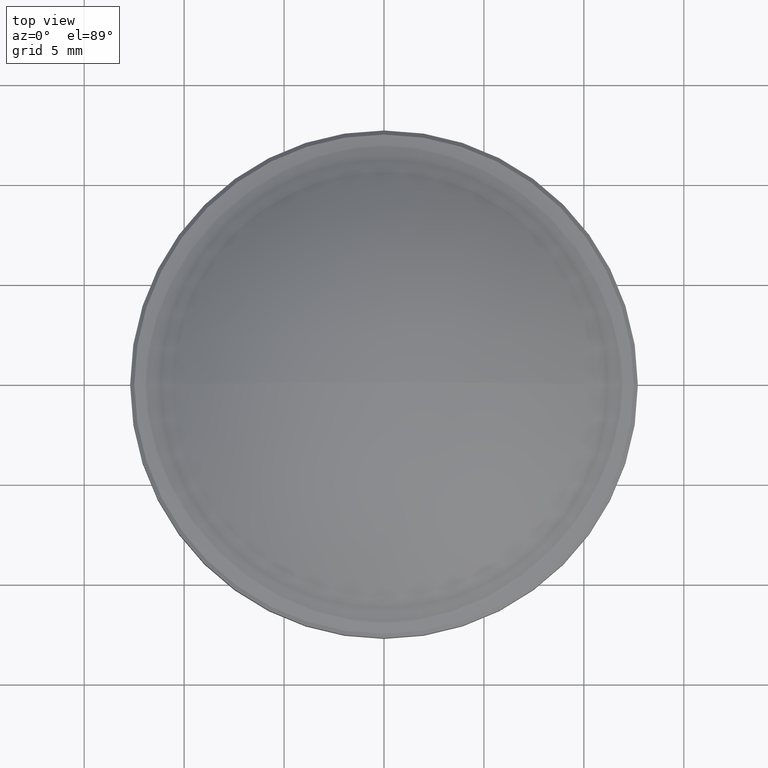
[diagram: clean part render]
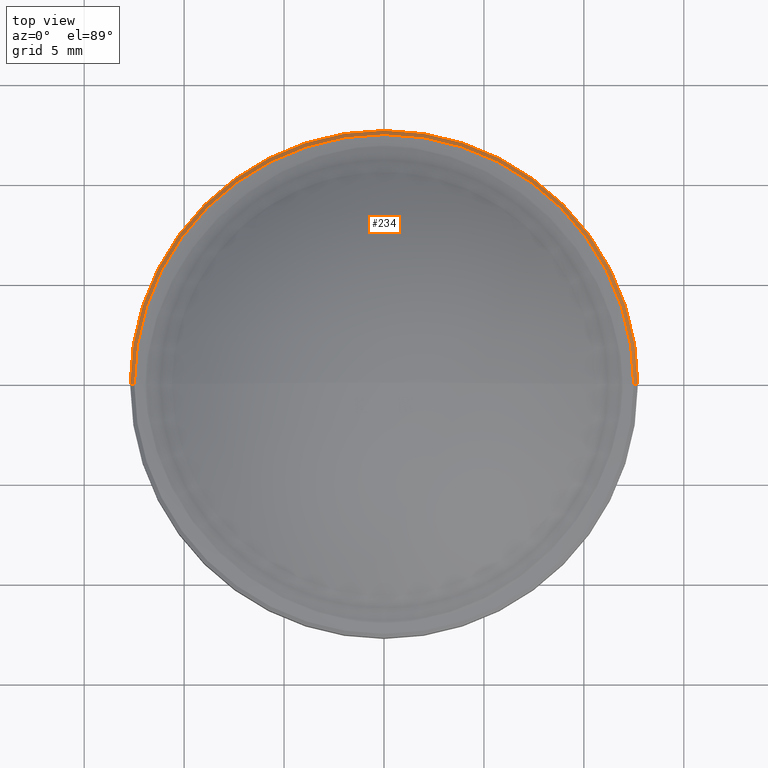
[diagram: same view with one face highlighted and labeled with its STEP entity id]
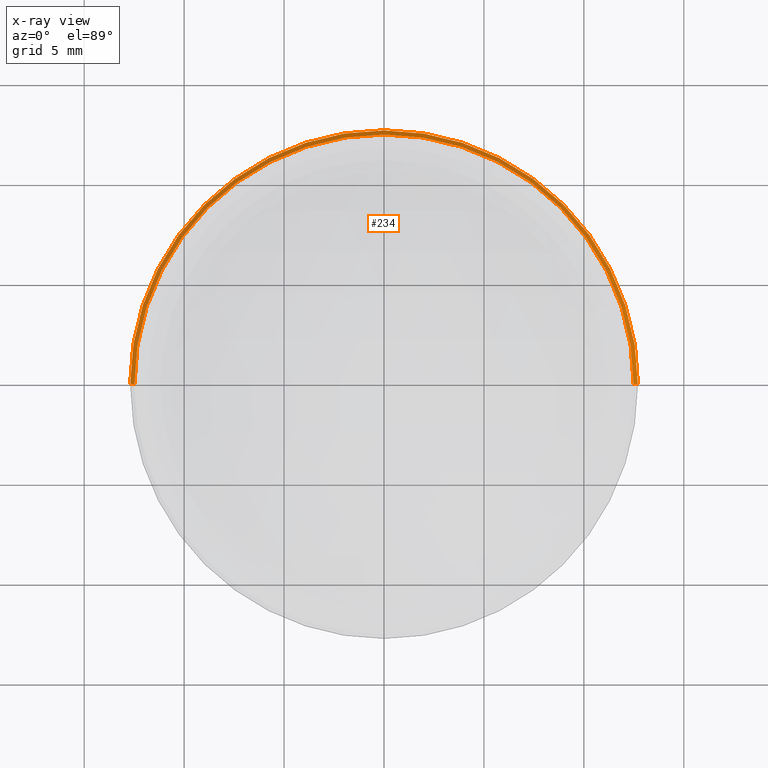
[diagram: x-ray of the same camera — body ghosted, the highlighted face saturated]
A machine part, top view. The second image highlights one B-rep face of the part: STEP entity #234.
The next image is the same camera in x-ray: the body ghosted, the highlighted face saturated — about 0% of this face is hidden behind the body in this view.
In plain terms, the highlighted conical surface has half-angle 45 deg.
Its self-contained STEP definition (entity closure, byte-faithful):
#2 = CIRCLE ( 'NONE', #274, 12.69999999999999929 ) ;
#8 = VERTEX_POINT ( 'NONE', #225 ) ;
#12 = AXIS2_PLACEMENT_3D ( 'NONE', #270, #55, #246 ) ;
#15 = CARTESIAN_POINT ( 'NONE',  ( 12.49410307713545087, 1.530086334163102642E-15, 2.935896922864571046 ) ) ;
#31 = FACE_OUTER_BOUND ( 'NONE', #186, .T. ) ;
#32 = AXIS2_PLACEMENT_3D ( 'NONE', #80, #154, #296 ) ;
#38 = DIRECTION ( 'NONE',  ( -0.7071067811865440200, 0.000000000000000000, -0.7071067811865511255 ) ) ;
#41 = ORIENTED_EDGE ( 'NONE', *, *, #244, .F. ) ;
#46 = VERTEX_POINT ( 'NONE', #305 ) ;
#55 = DIRECTION ( 'NONE',  ( 1.224646799147353207E-16, -0.000000000000000000, 1.000000000000000000 ) ) ;
#66 = CARTESIAN_POINT ( 'NONE',  ( -12.49410307714051882, 0.000000000000000000, 2.935896922863991954 ) ) ;
#80 = CARTESIAN_POINT ( 'NONE',  ( -4.398440698781394997E-16, 0.000000000000000000, 2.935896922864572822 ) ) ;
#92 = VECTOR ( 'NONE', #38, 999.9999999999998863 ) ;
#128 = LINE ( 'NONE', #15, #283 ) ;
#138 = EDGE_CURVE ( 'NONE', #8, #235, #2, .T. ) ;
#144 = ORIENTED_EDGE ( 'NONE', *, *, #318, .F. ) ;
#154 = DIRECTION ( 'NONE',  ( -1.224646799147353207E-16, 0.000000000000000000, -1.000000000000000000 ) ) ;
#161 = CARTESIAN_POINT ( 'NONE',  ( -12.49410307713545087, 0.000000000000000000, 2.935896922864574599 ) ) ;
#164 = DIRECTION ( 'NONE',  ( 0.7071067811865436870, 8.659560562354887252E-17, -0.7071067811865513475 ) ) ;
#185 = ORIENTED_EDGE ( 'NONE', *, *, #138, .F. ) ;
#186 = EDGE_LOOP ( 'NONE', ( #41, #294, #185, #144 ) ) ;
#191 = CONICAL_SURFACE ( 'NONE', #32, 12.49410307713545087, 0.7853981633974430610 ) ;
#209 = LINE ( 'NONE', #161, #92 ) ;
#215 = DIRECTION ( 'NONE',  ( 1.000000000000000000, 0.000000000000000000, -1.365923996832131609E-16 ) ) ;
#225 = CARTESIAN_POINT ( 'NONE',  ( -12.69999999999999929, 0.000000000000000000, 2.730000000000023075 ) ) ;
#231 = DIRECTION ( 'NONE',  ( -1.224646799147353207E-16, 0.000000000000000000, -1.000000000000000000 ) ) ;
#234 = ADVANCED_FACE ( 'NONE', ( #31 ), #191, .T. ) ;
#235 = VERTEX_POINT ( 'NONE', #245 ) ;
#238 = CARTESIAN_POINT ( 'NONE',  ( 0.000000000000000000, 0.000000000000000000, 2.730000000000021299 ) ) ;
#244 = EDGE_CURVE ( 'NONE', #46, #277, #304, .T. ) ;
#245 = CARTESIAN_POINT ( 'NONE',  ( 12.69999999999999929, 1.555301434917138038E-15, 2.730000000000019522 ) ) ;
#246 = DIRECTION ( 'NONE',  ( 1.000000000000000000, 0.000000000000000000, -1.388433779733579211E-16 ) ) ;
#259 = EDGE_CURVE ( 'NONE', #46, #235, #128, .T. ) ;
#270 = CARTESIAN_POINT ( 'NONE',  ( -4.398440698782108916E-16, 0.000000000000000000, 2.935896922863990177 ) ) ;
#274 = AXIS2_PLACEMENT_3D ( 'NONE', #238, #231, #215 ) ;
#277 = VERTEX_POINT ( 'NONE', #66 ) ;
#283 = VECTOR ( 'NONE', #164, 1000.000000000000000 ) ;
#294 = ORIENTED_EDGE ( 'NONE', *, *, #259, .T. ) ;
#296 = DIRECTION ( 'NONE',  ( -1.000000000000000000, 0.000000000000000000, 1.388433779733575513E-16 ) ) ;
#304 = CIRCLE ( 'NONE', #12, 12.49410307713541712 ) ;
#305 = CARTESIAN_POINT ( 'NONE',  ( 12.49410307714051882, 1.530086334163723081E-15, 2.935896922863988845 ) ) ;
#318 = EDGE_CURVE ( 'NONE', #277, #8, #209, .T. ) ;